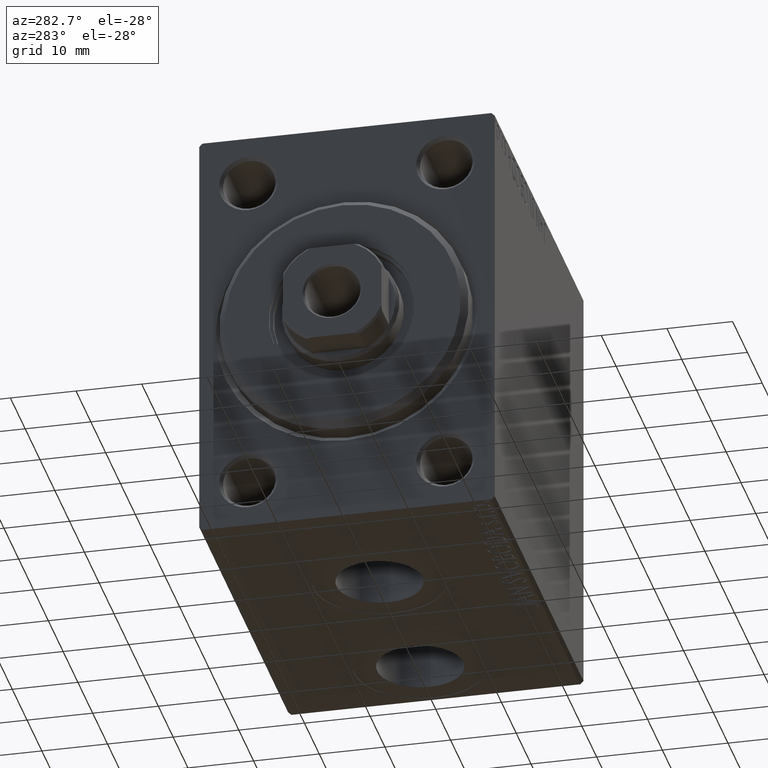
[diagram: clean part render]
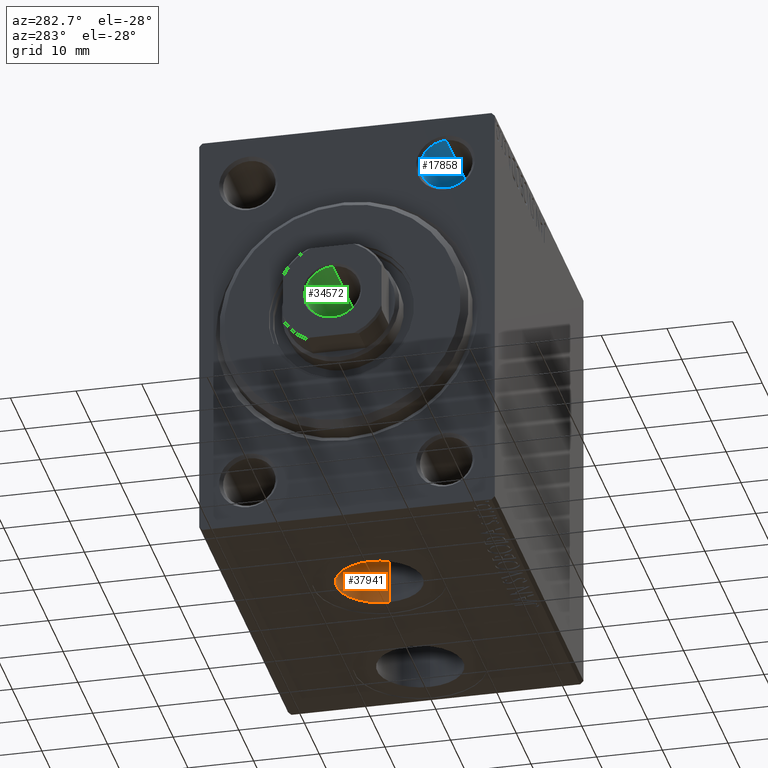
[diagram: same view with three faces highlighted in distinct colors, each labeled with its STEP entity id]
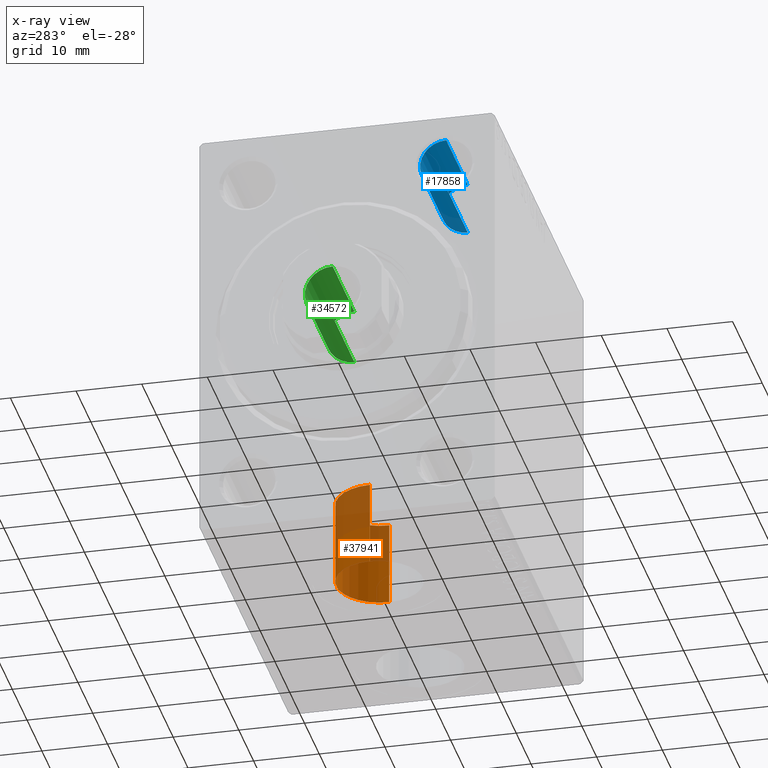
[diagram: x-ray of the same camera — body ghosted, the three highlighted faces saturated]
A machine part, auxiliary view with three faces highlighted in distinct colors.
The next image is the same camera in x-ray (body ghosted, the three faces saturated) — at least one of them is partly hidden behind the body in this view.
Their STEP definitions:

[orange] entity #37941 — the highlighted cylindrical surface (partial cylindrical patch) has radius 6.58 mm, axis along (-0, -0, -1).
#2249 = CARTESIAN_POINT ( 'NONE',  ( 15.41999999999999638, -2.910683231281019398E-15, -19.50000000000000355 ) ) ;
#3686 = AXIS2_PLACEMENT_3D ( 'NONE', #30514, #10235, #31434 ) ;
#4877 = VERTEX_POINT ( 'NONE', #23623 ) ;
#7238 = CARTESIAN_POINT ( 'NONE',  ( 22.00000000000000000, -2.910683231281019398E-15, -19.50000000000000355 ) ) ;
#7812 = VERTEX_POINT ( 'NONE', #15069 ) ;
#8856 = EDGE_CURVE ( 'NONE', #4877, #10350, #32905, .T. ) ;
#9080 = ORIENTED_EDGE ( 'NONE', *, *, #14026, .T. ) ;
#10235 = DIRECTION ( 'NONE',  ( 0.000000000000000000, 0.000000000000000000, -1.000000000000000000 ) ) ;
#10350 = VERTEX_POINT ( 'NONE', #31448 ) ;
#10630 = EDGE_LOOP ( 'NONE', ( #45164, #42281, #21232, #9080 ) ) ;
#11340 = CARTESIAN_POINT ( 'NONE',  ( 22.00000000000000000, -2.910683231281019398E-15, -19.50000000000000355 ) ) ;
#13671 = EDGE_CURVE ( 'NONE', #24677, #7812, #20203, .T. ) ;
#14026 = EDGE_CURVE ( 'NONE', #10350, #7812, #22087, .T. ) ;
#14087 = AXIS2_PLACEMENT_3D ( 'NONE', #7238, #17831, #35369 ) ;
#14791 = CYLINDRICAL_SURFACE ( 'NONE', #32521, 6.580000000000002736 ) ;
#15069 = CARTESIAN_POINT ( 'NONE',  ( 28.58000000000000185, -2.104865637442060750E-15, -32.40000000000000568 ) ) ;
#17831 = DIRECTION ( 'NONE',  ( 0.000000000000000000, 0.000000000000000000, -1.000000000000000000 ) ) ;
#18234 = FACE_OUTER_BOUND ( 'NONE', #10630, .T. ) ;
#20203 = LINE ( 'NONE', #21099, #41995 ) ;
#20461 = VECTOR ( 'NONE', #29883, 1000.000000000000000 ) ;
#21099 = CARTESIAN_POINT ( 'NONE',  ( 28.58000000000000185, -2.104865637442060750E-15, -19.50000000000000355 ) ) ;
#21232 = ORIENTED_EDGE ( 'NONE', *, *, #8856, .T. ) ;
#22087 = CIRCLE ( 'NONE', #3686, 6.580000000000002736 ) ;
#23623 = CARTESIAN_POINT ( 'NONE',  ( 15.41999999999999638, -2.910683231281019398E-15, -19.50000000000000355 ) ) ;
#24677 = VERTEX_POINT ( 'NONE', #33973 ) ;
#27785 = DIRECTION ( 'NONE',  ( -0.000000000000000000, -0.000000000000000000, -1.000000000000000000 ) ) ;
#29883 = DIRECTION ( 'NONE',  ( -0.000000000000000000, -0.000000000000000000, -1.000000000000000000 ) ) ;
#30514 = CARTESIAN_POINT ( 'NONE',  ( 22.00000000000000000, -2.910683231281019398E-15, -32.40000000000000568 ) ) ;
#31434 = DIRECTION ( 'NONE',  ( -1.000000000000000000, 0.000000000000000000, 0.000000000000000000 ) ) ;
#31448 = CARTESIAN_POINT ( 'NONE',  ( 15.41999999999999638, -2.910683231281019398E-15, -32.40000000000000568 ) ) ;
#32521 = AXIS2_PLACEMENT_3D ( 'NONE', #11340, #36013, #44734 ) ;
#32905 = LINE ( 'NONE', #2249, #20461 ) ;
#33973 = CARTESIAN_POINT ( 'NONE',  ( 28.58000000000000185, -2.104865637442060750E-15, -19.50000000000000355 ) ) ;
#35369 = DIRECTION ( 'NONE',  ( -1.000000000000000000, 0.000000000000000000, 0.000000000000000000 ) ) ;
#36013 = DIRECTION ( 'NONE',  ( -0.000000000000000000, -0.000000000000000000, -1.000000000000000000 ) ) ;
#36183 = CIRCLE ( 'NONE', #14087, 6.580000000000002736 ) ;
#36748 = EDGE_CURVE ( 'NONE', #4877, #24677, #36183, .T. ) ;
#37941 = ADVANCED_FACE ( 'NONE', ( #18234 ), #14791, .F. ) ;
#41995 = VECTOR ( 'NONE', #27785, 1000.000000000000000 ) ;
#42281 = ORIENTED_EDGE ( 'NONE', *, *, #36748, .F. ) ;
#44734 = DIRECTION ( 'NONE',  ( -1.000000000000000000, 0.000000000000000000, 0.000000000000000000 ) ) ;
#45164 = ORIENTED_EDGE ( 'NONE', *, *, #13671, .F. ) ;

[blue] entity #17858 — the highlighted cylindrical surface (edge-blend (fillet) strip) has radius 4 mm, axis along (-1, -0, -0).
#660 = CARTESIAN_POINT ( 'NONE',  ( 15.00000000000000000, -15.00000000000000000, 25.00000000000000000 ) ) ;
#1065 = DIRECTION ( 'NONE',  ( -1.000000000000000000, -0.000000000000000000, -0.000000000000000000 ) ) ;
#1444 = ORIENTED_EDGE ( 'NONE', *, *, #12503, .F. ) ;
#2156 = DIRECTION ( 'NONE',  ( -1.000000000000000000, -0.000000000000000000, -0.000000000000000000 ) ) ;
#6812 = AXIS2_PLACEMENT_3D ( 'NONE', #17911, #21133, #31984 ) ;
#8263 = EDGE_CURVE ( 'NONE', #43741, #19451, #12464, .T. ) ;
#11776 = CIRCLE ( 'NONE', #30158, 3.999999999999996447 ) ;
#12464 = LINE ( 'NONE', #36929, #27823 ) ;
#12503 = EDGE_CURVE ( 'NONE', #43741, #34513, #11776, .T. ) ;
#14470 = DIRECTION ( 'NONE',  ( 0.000000000000000000, 0.000000000000000000, 1.000000000000000000 ) ) ;
#14904 = CIRCLE ( 'NONE', #6812, 3.999999999999996447 ) ;
#17858 = ADVANCED_FACE ( 'NONE', ( #45331 ), #31953, .F. ) ;
#17911 = CARTESIAN_POINT ( 'NONE',  ( 0.5000000000000056621, -15.00000000000000000, 25.00000000000000000 ) ) ;
#19451 = VERTEX_POINT ( 'NONE', #35553 ) ;
#20337 = CARTESIAN_POINT ( 'NONE',  ( 0.000000000000000000, -15.00000000000000000, 21.00000000000000355 ) ) ;
#21133 = DIRECTION ( 'NONE',  ( -1.000000000000000000, 0.000000000000000000, 0.000000000000000000 ) ) ;
#21755 = CARTESIAN_POINT ( 'NONE',  ( 0.5000000000000056621, -15.00000000000000000, 21.00000000000000355 ) ) ;
#21816 = ORIENTED_EDGE ( 'NONE', *, *, #37686, .F. ) ;
#22656 = EDGE_LOOP ( 'NONE', ( #21816, #1444, #35256, #41811 ) ) ;
#27199 = CARTESIAN_POINT ( 'NONE',  ( 15.00000000000000000, -15.00000000000000000, 28.99999999999999645 ) ) ;
#27823 = VECTOR ( 'NONE', #40142, 1000.000000000000000 ) ;
#28711 = AXIS2_PLACEMENT_3D ( 'NONE', #35873, #1065, #35419 ) ;
#30158 = AXIS2_PLACEMENT_3D ( 'NONE', #660, #36143, #14470 ) ;
#31953 = CYLINDRICAL_SURFACE ( 'NONE', #28711, 3.999999999999996447 ) ;
#31984 = DIRECTION ( 'NONE',  ( 0.000000000000000000, 0.000000000000000000, -1.000000000000000000 ) ) ;
#34513 = VERTEX_POINT ( 'NONE', #35854 ) ;
#35256 = ORIENTED_EDGE ( 'NONE', *, *, #8263, .T. ) ;
#35419 = DIRECTION ( 'NONE',  ( 0.000000000000000000, 0.000000000000000000, 1.000000000000000000 ) ) ;
#35553 = CARTESIAN_POINT ( 'NONE',  ( 0.5000000000000056621, -15.00000000000000000, 28.99999999999999645 ) ) ;
#35854 = CARTESIAN_POINT ( 'NONE',  ( 15.00000000000000000, -15.00000000000000000, 21.00000000000000355 ) ) ;
#35873 = CARTESIAN_POINT ( 'NONE',  ( 0.000000000000000000, -15.00000000000000000, 25.00000000000000000 ) ) ;
#36143 = DIRECTION ( 'NONE',  ( -1.000000000000000000, -0.000000000000000000, -0.000000000000000000 ) ) ;
#36218 = VECTOR ( 'NONE', #2156, 1000.000000000000000 ) ;
#36929 = CARTESIAN_POINT ( 'NONE',  ( 0.000000000000000000, -15.00000000000000000, 28.99999999999999645 ) ) ;
#37686 = EDGE_CURVE ( 'NONE', #34513, #44431, #41344, .T. ) ;
#40142 = DIRECTION ( 'NONE',  ( -1.000000000000000000, -0.000000000000000000, -0.000000000000000000 ) ) ;
#41344 = LINE ( 'NONE', #20337, #36218 ) ;
#41811 = ORIENTED_EDGE ( 'NONE', *, *, #44108, .T. ) ;
#43741 = VERTEX_POINT ( 'NONE', #27199 ) ;
#44108 = EDGE_CURVE ( 'NONE', #19451, #44431, #14904, .T. ) ;
#44431 = VERTEX_POINT ( 'NONE', #21755 ) ;
#45331 = FACE_OUTER_BOUND ( 'NONE', #22656, .T. ) ;

[green] entity #34572 — the highlighted cylindrical surface (edge-blend (fillet) strip) has radius 4.25 mm, axis along (-1, 0, 0).
#2408 = DIRECTION ( 'NONE',  ( 1.000000000000000000, 0.000000000000000000, 0.000000000000000000 ) ) ;
#3305 = DIRECTION ( 'NONE',  ( -0.000000000000000000, -0.000000000000000000, 1.000000000000000000 ) ) ;
#5547 = ORIENTED_EDGE ( 'NONE', *, *, #27793, .F. ) ;
#6906 = VERTEX_POINT ( 'NONE', #24967 ) ;
#7441 = CARTESIAN_POINT ( 'NONE',  ( 0.000000000000000000, 0.000000000000000000, 60.99999999999999289 ) ) ;
#7769 = CARTESIAN_POINT ( 'NONE',  ( 4.249999999999997335, 0.000000000000000000, 60.69999999999999574 ) ) ;
#11620 = ORIENTED_EDGE ( 'NONE', *, *, #29699, .T. ) ;
#13088 = DIRECTION ( 'NONE',  ( -0.000000000000000000, -0.000000000000000000, 1.000000000000000000 ) ) ;
#14900 = VECTOR ( 'NONE', #13088, 1000.000000000000000 ) ;
#16445 = DIRECTION ( 'NONE',  ( 0.000000000000000000, 0.000000000000000000, 1.000000000000000000 ) ) ;
#16543 = LINE ( 'NONE', #17221, #14900 ) ;
#17221 = CARTESIAN_POINT ( 'NONE',  ( -4.249999999999997335, 5.204748896376248727E-16, 60.99999999999999289 ) ) ;
#18905 = DIRECTION ( 'NONE',  ( 1.000000000000000000, 0.000000000000000000, 0.000000000000000000 ) ) ;
#20406 = DIRECTION ( 'NONE',  ( -0.000000000000000000, -0.000000000000000000, 1.000000000000000000 ) ) ;
#20789 = VECTOR ( 'NONE', #20406, 1000.000000000000000 ) ;
#21709 = CYLINDRICAL_SURFACE ( 'NONE', #33932, 4.249999999999997335 ) ;
#22381 = VERTEX_POINT ( 'NONE', #36303 ) ;
#23500 = EDGE_CURVE ( 'NONE', #39988, #6906, #16543, .T. ) ;
#24330 = VERTEX_POINT ( 'NONE', #7769 ) ;
#24967 = CARTESIAN_POINT ( 'NONE',  ( -4.249999999999997335, 5.204748896376248727E-16, 60.69999999999999574 ) ) ;
#26343 = CARTESIAN_POINT ( 'NONE',  ( 0.000000000000000000, 0.000000000000000000, 60.69999999999999574 ) ) ;
#27793 = EDGE_CURVE ( 'NONE', #22381, #39988, #27830, .T. ) ;
#27830 = CIRCLE ( 'NONE', #35226, 4.249999999999996447 ) ;
#29699 = EDGE_CURVE ( 'NONE', #24330, #6906, #44095, .T. ) ;
#31721 = ORIENTED_EDGE ( 'NONE', *, *, #44361, .T. ) ;
#32210 = EDGE_LOOP ( 'NONE', ( #38617, #5547, #31721, #11620 ) ) ;
#33221 = DIRECTION ( 'NONE',  ( -0.000000000000000000, -0.000000000000000000, 1.000000000000000000 ) ) ;
#33932 = AXIS2_PLACEMENT_3D ( 'NONE', #7441, #3305, #38809 ) ;
#34572 = ADVANCED_FACE ( 'NONE', ( #38368 ), #21709, .F. ) ;
#35226 = AXIS2_PLACEMENT_3D ( 'NONE', #36694, #33221, #18905 ) ;
#36303 = CARTESIAN_POINT ( 'NONE',  ( 4.249999999999996447, 0.000000000000000000, 45.99999999999999289 ) ) ;
#36694 = CARTESIAN_POINT ( 'NONE',  ( 0.000000000000000000, 0.000000000000000000, 45.99999999999999289 ) ) ;
#38368 = FACE_OUTER_BOUND ( 'NONE', #32210, .T. ) ;
#38617 = ORIENTED_EDGE ( 'NONE', *, *, #23500, .F. ) ;
#38809 = DIRECTION ( 'NONE',  ( 1.000000000000000000, 0.000000000000000000, 0.000000000000000000 ) ) ;
#39988 = VERTEX_POINT ( 'NONE', #41642 ) ;
#41642 = CARTESIAN_POINT ( 'NONE',  ( -4.249999999999996447, 5.204748896376247741E-16, 45.99999999999999289 ) ) ;
#44095 = CIRCLE ( 'NONE', #45579, 4.249999999999997335 ) ;
#44171 = LINE ( 'NONE', #44405, #20789 ) ;
#44361 = EDGE_CURVE ( 'NONE', #22381, #24330, #44171, .T. ) ;
#44405 = CARTESIAN_POINT ( 'NONE',  ( 4.249999999999997335, 0.000000000000000000, 60.99999999999999289 ) ) ;
#45579 = AXIS2_PLACEMENT_3D ( 'NONE', #26343, #16445, #2408 ) ;